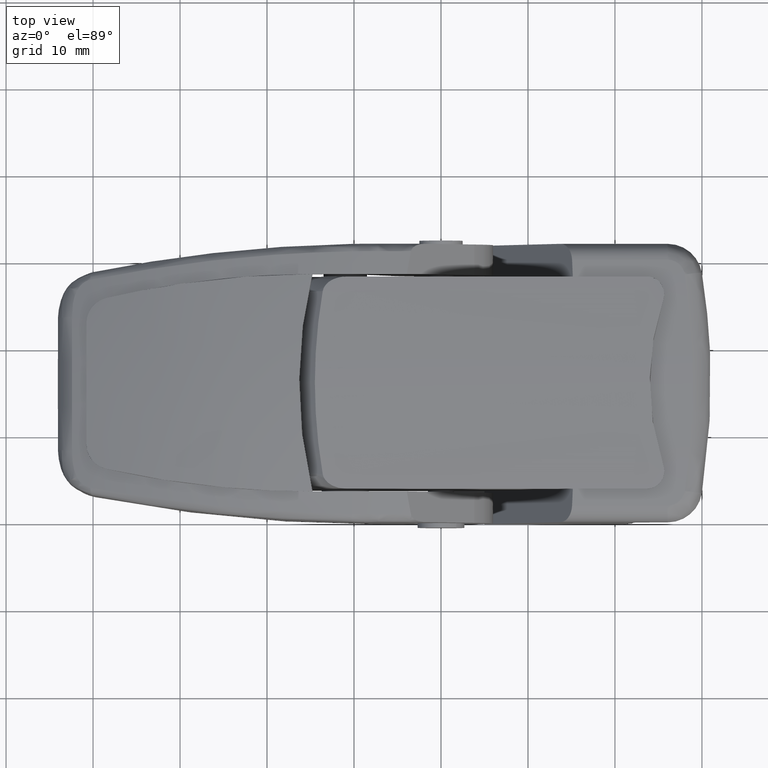
[diagram: clean part render]
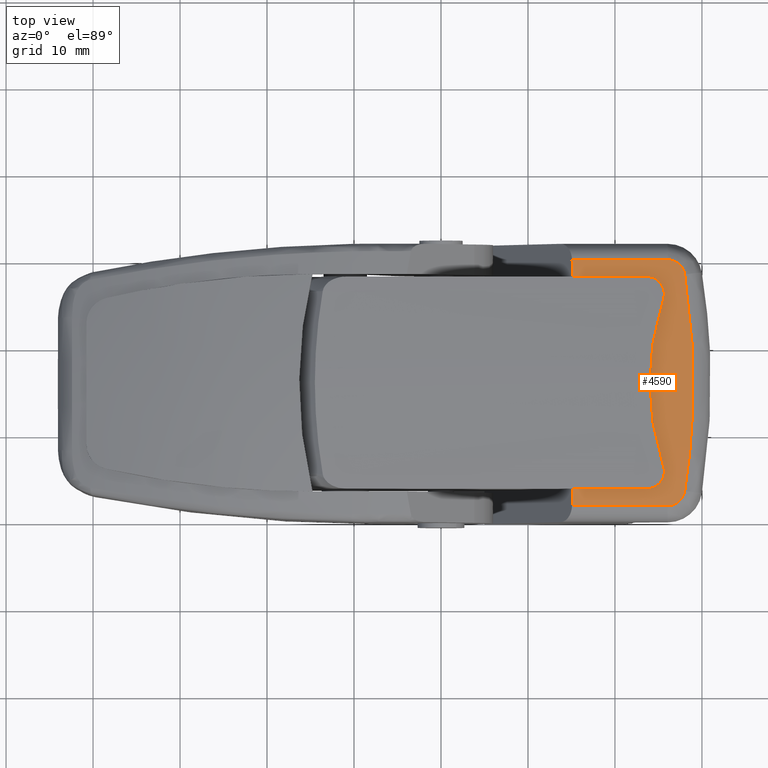
[diagram: same view with one face highlighted and labeled with its STEP entity id]
A machine part, top view. The second image highlights one B-rep face of the part: STEP entity #4590.
In plain terms, the highlighted cylindrical surface (partial cylindrical patch) has radius 200 mm, axis along (1, -0, -0).
Its self-contained STEP definition (entity closure, byte-faithful):
#67=ELLIPSE('',#5013,239.900042743508,200.);
#68=ELLIPSE('',#5014,239.900042743508,200.);
#143=B_SPLINE_CURVE_WITH_KNOTS('',3,(#9062,#9063,#9064,#9065,#9066,#9067,
#9068,#9069,#9070,#9071,#9072,#9073),.UNSPECIFIED.,.F.,.F.,(4,2,2,2,2,4),
(0.842069050374687,0.90461078396484,0.980036236454525,1.05546168894421,
1.13082666466526,1.20619164038631),.UNSPECIFIED.);
#144=B_SPLINE_CURVE_WITH_KNOTS('',3,(#9079,#9080,#9081,#9082,#9083,#9084,
#9085,#9086,#9087,#9088,#9089,#9090),.UNSPECIFIED.,.F.,.F.,(4,2,2,2,2,4),
(0.603095817328081,0.678460793049132,0.753825768770183,0.829251221259868,
0.904676673749554,0.967218407339707),.UNSPECIFIED.);
#145=B_SPLINE_CURVE_WITH_KNOTS('',3,(#9093,#9094,#9095,#9096,#9097,#9098,
#9099,#9100,#9101,#9102),.UNSPECIFIED.,.F.,.F.,(4,2,2,2,4),(-5.46539484666664,
-5.09353155326759,-4.52758798867943,-3.96164442409127,-3.58978113069221),
 .UNSPECIFIED.);
#146=B_SPLINE_CURVE_WITH_KNOTS('',3,(#9111,#9112,#9113,#9114,#9115),
 .UNSPECIFIED.,.F.,.F.,(4,1,4),(0.,0.120517024887885,0.281206391405064),
 .UNSPECIFIED.);
#147=B_SPLINE_CURVE_WITH_KNOTS('',3,(#9117,#9118,#9119,#9120,#9121),
 .UNSPECIFIED.,.F.,.F.,(4,1,4),(0.,1.05563909774436,2.46315789473684),
 .UNSPECIFIED.);
#148=B_SPLINE_CURVE_WITH_KNOTS('',3,(#9123,#9124,#9125,#9126,#9127),
 .UNSPECIFIED.,.F.,.F.,(4,1,4),(2.39297960357462E-16,0.120518062283758,
0.281208811995436),.UNSPECIFIED.);
#602=FACE_OUTER_BOUND('',#921,.T.);
#921=EDGE_LOOP('',(#3929,#3930,#3931,#3932,#3933,#3934,#3935,#3936,#3937,
#3938,#3939,#3940));
#1237=LINE('',#9013,#1589);
#1244=LINE('',#9105,#1596);
#1245=LINE('',#9109,#1597);
#1246=LINE('',#9129,#1598);
#1589=VECTOR('',#6041,8.51587395741703);
#1596=VECTOR('',#6062,8.51587395741703);
#1597=VECTOR('',#6065,10.9782435209667);
#1598=VECTOR('',#6066,10.9782435209667);
#2229=VERTEX_POINT('',#9010);
#2230=VERTEX_POINT('',#9012);
#2237=VERTEX_POINT('',#9061);
#2238=VERTEX_POINT('',#9076);
#2239=VERTEX_POINT('',#9078);
#2240=VERTEX_POINT('',#9104);
#2241=VERTEX_POINT('',#9106);
#2242=VERTEX_POINT('',#9108);
#2243=VERTEX_POINT('',#9110);
#2244=VERTEX_POINT('',#9116);
#2245=VERTEX_POINT('',#9122);
#2246=VERTEX_POINT('',#9128);
#2815=EDGE_CURVE('',#2230,#2229,#1237,.T.);
#2824=EDGE_CURVE('',#2237,#2230,#143,.T.);
#2827=EDGE_CURVE('',#2239,#2238,#144,.T.);
#2829=EDGE_CURVE('',#2238,#2237,#145,.T.);
#2830=EDGE_CURVE('',#2240,#2239,#1244,.T.);
#2831=EDGE_CURVE('',#2241,#2229,#67,.T.);
#2832=EDGE_CURVE('',#2242,#2241,#1245,.T.);
#2833=EDGE_CURVE('',#2243,#2242,#146,.T.);
#2834=EDGE_CURVE('',#2244,#2243,#147,.T.);
#2835=EDGE_CURVE('',#2245,#2244,#148,.T.);
#2836=EDGE_CURVE('',#2246,#2245,#1246,.T.);
#2837=EDGE_CURVE('',#2240,#2246,#68,.T.);
#3929=ORIENTED_EDGE('',*,*,#2830,.T.);
#3930=ORIENTED_EDGE('',*,*,#2827,.T.);
#3931=ORIENTED_EDGE('',*,*,#2829,.T.);
#3932=ORIENTED_EDGE('',*,*,#2824,.T.);
#3933=ORIENTED_EDGE('',*,*,#2815,.T.);
#3934=ORIENTED_EDGE('',*,*,#2831,.F.);
#3935=ORIENTED_EDGE('',*,*,#2832,.F.);
#3936=ORIENTED_EDGE('',*,*,#2833,.F.);
#3937=ORIENTED_EDGE('',*,*,#2834,.F.);
#3938=ORIENTED_EDGE('',*,*,#2835,.F.);
#3939=ORIENTED_EDGE('',*,*,#2836,.F.);
#3940=ORIENTED_EDGE('',*,*,#2837,.F.);
#4368=CYLINDRICAL_SURFACE('',#5012,200.);
#4590=ADVANCED_FACE('',(#602),#4368,.T.);
#5012=AXIS2_PLACEMENT_3D('',#9103,#6060,#6061);
#5013=AXIS2_PLACEMENT_3D('',#9107,#6063,#6064);
#5014=AXIS2_PLACEMENT_3D('',#9130,#6067,#6068);
#6041=DIRECTION('',(-1.,8.7938457396052E-16,0.));
#6060=DIRECTION('center_axis',(1.,-8.7938457396052E-16,0.));
#6061=DIRECTION('ref_axis',(-8.765660264091E-16,-0.996794863550169,-0.08));
#6062=DIRECTION('',(1.,-8.7938457396052E-16,0.));
#6063=DIRECTION('center_axis',(-0.833680551753099,0.552246989696321,0.));
#6064=DIRECTION('ref_axis',(-0.552246989696321,-0.833680551753099,0.));
#6065=DIRECTION('',(-1.,8.7938457396052E-16,0.));
#6066=DIRECTION('',(1.,-8.7938457396052E-16,0.));
#6067=DIRECTION('center_axis',(-0.833680551753099,0.552246989696321,0.));
#6068=DIRECTION('ref_axis',(-0.552246989696321,-0.833680551753099,0.));
#9010=CARTESIAN_POINT('',(4.15328365401747,17.3275532084687,12.2));
#9012=CARTESIAN_POINT('',(12.6691576114345,17.3275532084687,12.2));
#9013=CARTESIAN_POINT('',(-30.5,17.3275532084687,12.2));
#9061=CARTESIAN_POINT('',(14.5648352607199,17.4712656859089,9.5625));
#9062=CARTESIAN_POINT('Ctrl Pts',(14.5648352607199,17.4712656859089,9.56250000000002));
#9063=CARTESIAN_POINT('Ctrl Pts',(14.6352397063966,17.4612444148101,9.77185550443871));
#9064=CARTESIAN_POINT('Ctrl Pts',(14.6691576114345,17.4503627443735,9.991798849639));
#9065=CARTESIAN_POINT('Ctrl Pts',(14.6691576114345,17.4269083227399,10.4510909927403));
#9066=CARTESIAN_POINT('Ctrl Pts',(14.6189875278094,17.4127079060896,10.7189170861601));
#9067=CARTESIAN_POINT('Ctrl Pts',(14.4149093959651,17.3856516924922,11.2116631606523));
#9068=CARTESIAN_POINT('Ctrl Pts',(14.2610004744731,17.3728228862283,11.4365842617076));
#9069=CARTESIAN_POINT('Ctrl Pts',(13.9058842978246,17.3521660512449,11.7917004383561));
#9070=CARTESIAN_POINT('Ctrl Pts',(13.6810480978689,17.342962698104,11.9456227338463));
#9071=CARTESIAN_POINT('Ctrl Pts',(13.18829398984,17.3306425628414,12.1497739619279));
#9072=CARTESIAN_POINT('Ctrl Pts',(12.9203741971713,17.3275532084687,12.2));
#9073=CARTESIAN_POINT('Ctrl Pts',(12.6691576114345,17.3275532084687,12.2));
#9076=CARTESIAN_POINT('',(14.5648352607199,17.4712656859089,-9.5625));
#9078=CARTESIAN_POINT('',(12.6691576114345,17.3275532084687,-12.2));
#9079=CARTESIAN_POINT('Ctrl Pts',(12.6691576114345,17.3275532084687,-12.2));
#9080=CARTESIAN_POINT('Ctrl Pts',(12.9203741971713,17.3275532084687,-12.2));
#9081=CARTESIAN_POINT('Ctrl Pts',(13.18829398984,17.3306425628414,-12.1497739619279));
#9082=CARTESIAN_POINT('Ctrl Pts',(13.6810480978689,17.342962698104,-11.9456227338463));
#9083=CARTESIAN_POINT('Ctrl Pts',(13.9058842978246,17.3521660512449,-11.7917004383561));
#9084=CARTESIAN_POINT('Ctrl Pts',(14.2610004744731,17.3728228862283,-11.4365842617076));
#9085=CARTESIAN_POINT('Ctrl Pts',(14.4149093959651,17.3856516924922,-11.2116631606523));
#9086=CARTESIAN_POINT('Ctrl Pts',(14.6189875278094,17.4127079060896,-10.7189170861601));
#9087=CARTESIAN_POINT('Ctrl Pts',(14.6691576114345,17.4269083227399,-10.4510909927403));
#9088=CARTESIAN_POINT('Ctrl Pts',(14.6691576114345,17.4503627443735,-9.991798849639));
#9089=CARTESIAN_POINT('Ctrl Pts',(14.6352397063966,17.4612444148101,-9.77185550443871));
#9090=CARTESIAN_POINT('Ctrl Pts',(14.5648352607199,17.4712656859089,-9.56250000000002));
#9093=CARTESIAN_POINT('Ctrl Pts',(14.5648352607199,17.4712656859089,-9.56250000000001));
#9094=CARTESIAN_POINT('Ctrl Pts',(14.1463243590063,17.5308359468999,-8.31801096100288));
#9095=CARTESIAN_POINT('Ctrl Pts',(13.8109955629527,17.5798061127521,-7.04890277230375));
#9096=CARTESIAN_POINT('Ctrl Pts',(13.1808080497979,17.6726049101492,-3.83648855588839));
#9097=CARTESIAN_POINT('Ctrl Pts',(13.,17.7,-1.88647854862721));
#9098=CARTESIAN_POINT('Ctrl Pts',(13.,17.7,1.88647854862721));
#9099=CARTESIAN_POINT('Ctrl Pts',(13.1808080497979,17.6726049101492,3.83648855588839));
#9100=CARTESIAN_POINT('Ctrl Pts',(13.8109955629527,17.5798061127521,7.04890277230376));
#9101=CARTESIAN_POINT('Ctrl Pts',(14.1463243590063,17.5308359468999,8.31801096100288));
#9102=CARTESIAN_POINT('Ctrl Pts',(14.5648352607199,17.4712656859089,9.56250000000001));
#9103=CARTESIAN_POINT('Origin',(-30.5000000000002,-182.3,0.));
#9104=CARTESIAN_POINT('',(4.15328365401747,17.3275532084687,-12.2));
#9105=CARTESIAN_POINT('',(-30.5,17.3275532084687,-12.2));
#9106=CARTESIAN_POINT('',(4.0684086362082,17.1994245758143,14.1414141414141));
#9107=CARTESIAN_POINT('Origin',(-128.084076433121,-182.3,0.));
#9108=CARTESIAN_POINT('',(15.0466521571749,17.1994245758142,14.1414141414141));
#9109=CARTESIAN_POINT('',(-30.5,17.1994245758143,14.1414141414141));
#9110=CARTESIAN_POINT('',(17.0215640560479,17.3127291488218,12.4401913875598));
#9111=CARTESIAN_POINT('Ctrl Pts',(17.0215640560479,17.3127291488217,12.4401913875598));
#9112=CARTESIAN_POINT('Ctrl Pts',(16.9582538125234,17.2878045775994,12.8401258845099));
#9113=CARTESIAN_POINT('Ctrl Pts',(16.5196341979223,17.2286391825764,13.7366966616349));
#9114=CARTESIAN_POINT('Ctrl Pts',(15.5822833788988,17.1994245758142,14.1414141414142));
#9115=CARTESIAN_POINT('Ctrl Pts',(15.0466521571749,17.1994245758142,14.1414141414142));
#9116=CARTESIAN_POINT('',(17.0215640560479,17.3127291488218,-12.4401913875598));
#9117=CARTESIAN_POINT('Ctrl Pts',(17.0215640560479,17.3127291488217,-12.4401913875598));
#9118=CARTESIAN_POINT('Ctrl Pts',(17.5761144891865,17.5310497711674,-8.93706399199034));
#9119=CARTESIAN_POINT('Ctrl Pts',(18.3315603548216,17.8326293128943,-0.609621114204648));
#9120=CARTESIAN_POINT('Ctrl Pts',(17.7609646335661,17.6038233119493,7.76935486013383));
#9121=CARTESIAN_POINT('Ctrl Pts',(17.0215640560479,17.3127291488217,12.4401913875598));
#9122=CARTESIAN_POINT('',(15.0466521571749,17.1994245758142,-14.1414141414142));
#9123=CARTESIAN_POINT('Ctrl Pts',(15.0466521571749,17.1994245758143,-14.1414141414141));
#9124=CARTESIAN_POINT('Ctrl Pts',(15.4483790314541,17.1994245758143,-14.1414141414141));
#9125=CARTESIAN_POINT('Ctrl Pts',(16.3956026656208,17.2209123287055,-13.8438241007588));
#9126=CARTESIAN_POINT('Ctrl Pts',(16.9371496713928,17.2794961011284,-12.9734419736099));
#9127=CARTESIAN_POINT('Ctrl Pts',(17.0215640560479,17.3127291488217,-12.4401913875598));
#9128=CARTESIAN_POINT('',(4.0684086362082,17.1994245758143,-14.1414141414142));
#9129=CARTESIAN_POINT('',(-30.5,17.1994245758143,-14.1414141414142));
#9130=CARTESIAN_POINT('Origin',(-128.084076433121,-182.3,0.));